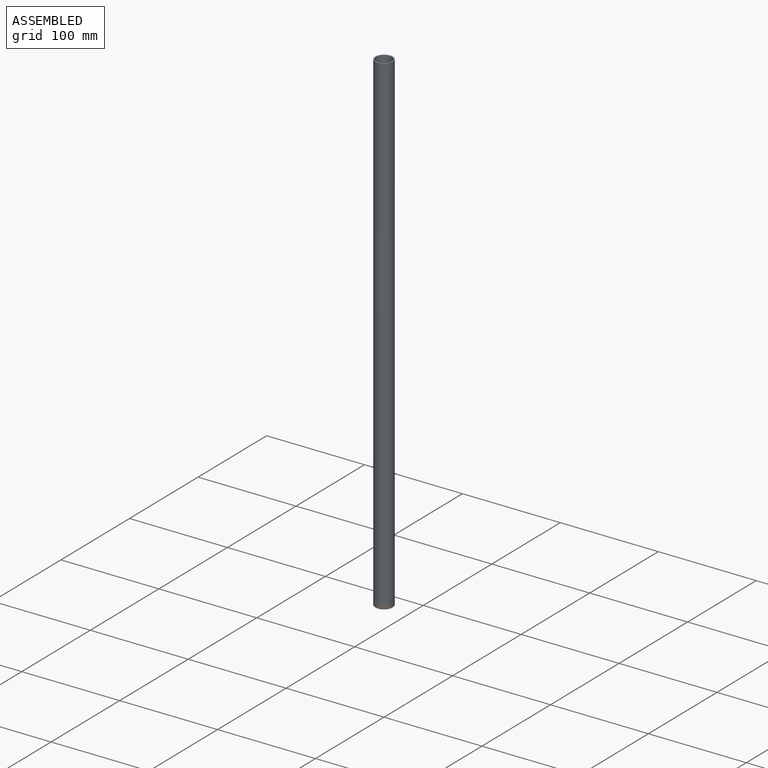
[diagram: assembled view]
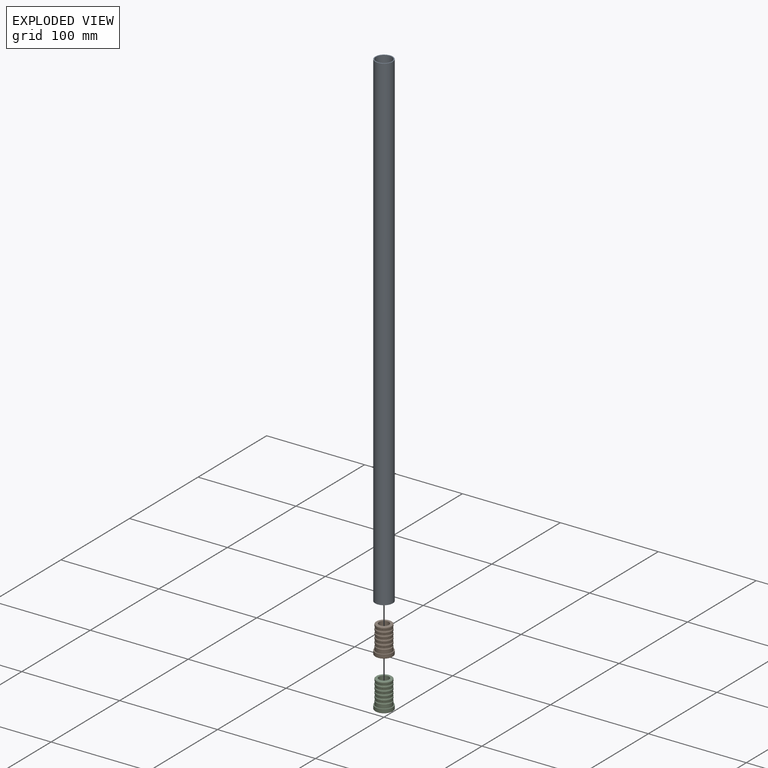
[diagram: exploded view]
GUIDED TOUR — FREECAD ASSEMBLY "PoleAssembly"

This assembly has 3 components, labeled P0..P2 below (a component is one placed body or linked part; the same part can appear more than once), held together by 0 modeled joints plus 3 derived contact edges. A joint is a constraint between two components; its type names the relative motion it leaves free:
  CONTACT — a derived adjacency edge — the two components touch in the source model (clearance under 2% of the assembly's diagonal); it is measured from the geometry, not a modeled constraint.
Axis/direction vectors are unit vectors and 'through' points are millimeter coordinates, both in the assembly's world frame.

MATES
  1. CONTACT "contact_0_1": P0 <-> P1, contact direction (0.000, 0.000, -1.000) through (8.99, 0.45, 4.00) mm (derived from contact, not a modeled constraint)
  2. CONTACT "contact_0_2": P0 <-> P2, contact direction (0.000, 0.000, -1.000) through (8.99, 0.45, 4.00) mm (derived from contact, not a modeled constraint)
  3. CONTACT "contact_1_2": P1 <-> P2, contact direction (0.000, 0.000, -1.000) through (8.99, -0.45, 0.40) mm (derived from contact, not a modeled constraint)

ASSEMBLY ORDER
  1. P0 — the base component [order heuristic]
  2. P1 [order heuristic]
  3. P2 [order heuristic]
Order-tag legend:
  [order heuristic] — this assembly is geometrically interlocked (no collision-free removal order exists), so components are listed in mate-graph order; insertion feasibility is not verified.

Of the 3 components, 3 carry a construction recipe — the FreeCAD feature program (sketches with constraints, then the solid features that consume them) that regenerates the part from scratch, quoted from this document or from the linked companion document it references; the rest are supplied as boundary geometry only. The tour below walks the components in assembly order: each is shown spotlighted twice — in the assembled view, then in the exploded view, where a leader line traces a displaced component back to its assembled socket (components that stay in place when exploded have no leader line; saturated green if recipe-attached, orange if geometry-only; every other component desaturated gray) — followed by its recipe or geometry summary and the mates that hold it.
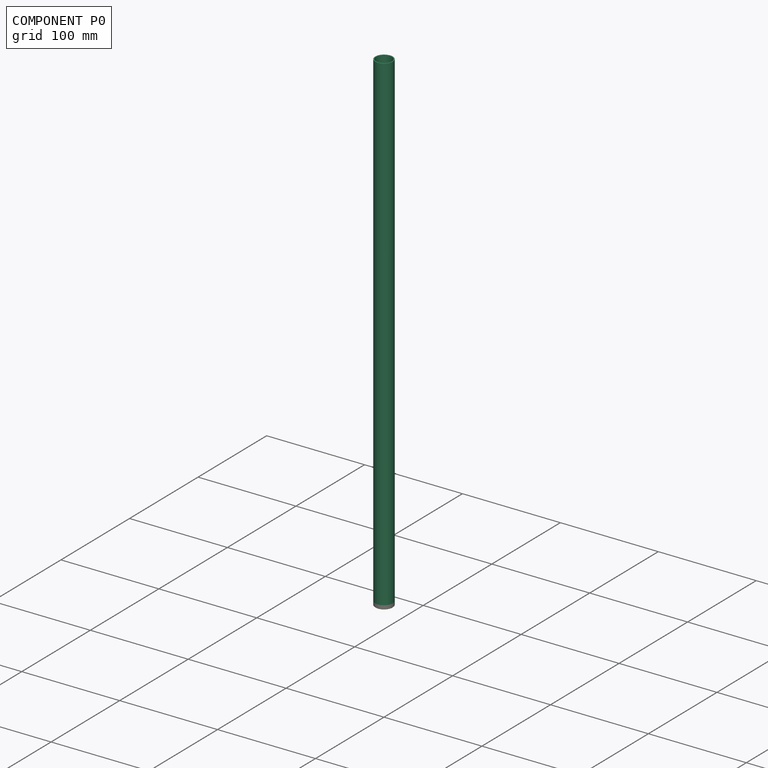
[diagram: component P0 — assembled]
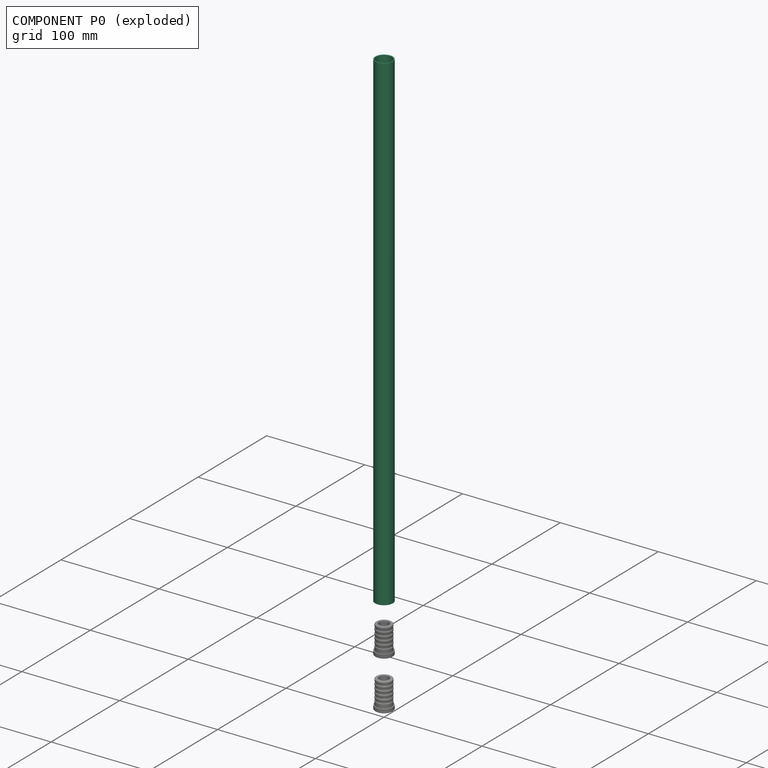
[diagram: component P0 — exploded]
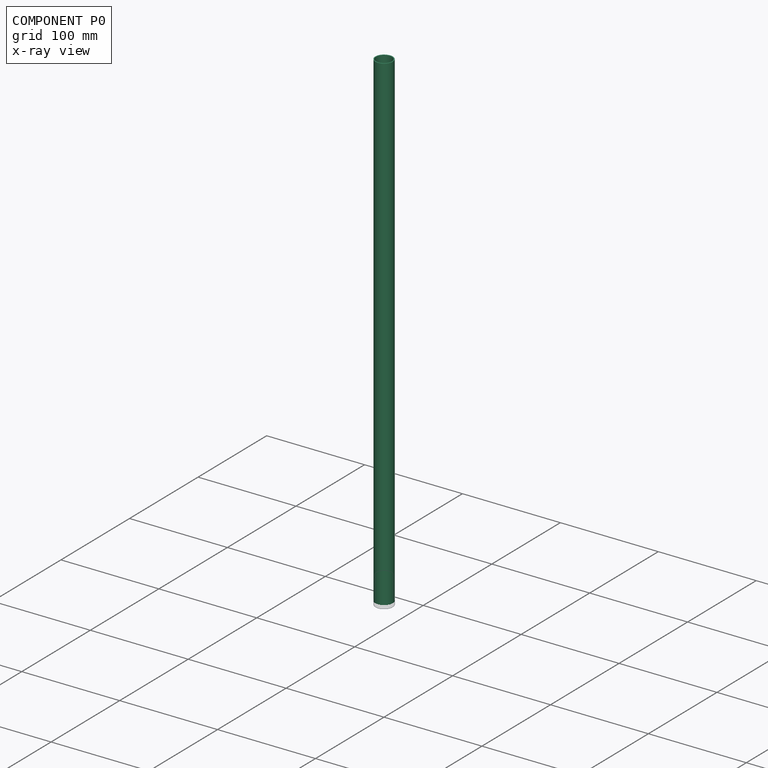
[diagram: component P0 — x-ray view]
COMPONENT P0 — recipe-attached ("Pole_Body", modeled in this document).
Held by: resting contact with P1 (derived edge); resting contact with P2 (derived edge).
Construction recipe (the document's own serialized feature program — sketch geometry with constraints, then the solid features built on it; lengths are millimeters unless a unit is written):

FEATURE [Sketcher::SketchObject] Sketch028  label="Pole_ProfileSketch"
  FullyConstrained = true
  MapMode = 5
  Support = -> [XY_Plane027]
  expr: .Constraints.OD = <<Common>>#<<Parameters>>.pole_od
  expr: Constraints[3] = .Constraints.OD - <<Common>>#<<Parameters>>.pole_wall * 2 mm
  sketch-geometry (2):
    g0: Circle CenterX=0 CenterY=0 CenterZ=0 NormalX=0 NormalY=0 NormalZ=1 AngleXU=0 Radius=9
    g1: Circle CenterX=0 CenterY=0 CenterZ=0 NormalX=0 NormalY=0 NormalZ=1 AngleXU=0 Radius=8
  constraints (4):
    c: Coincident(g0,g-1)
    c: Coincident(g1,g0)
    c: Diameter(g0) = 18  'OD'
    c: Diameter(g1) = 16
FEATURE [PartDesign::Pad] Pad014  label="Pole_Pad"
  Direction = (0,0,1)
  Length = 500
  Length2 = 100
  Profile = -> Sketch028
  Type = 0
  expr: Length = <<Common>>#<<Parameters>>.pole_segment
FEATURE [PartDesign::CoordinateSystem] Local_CS040  label="LCS_PoleBase"
  AttacherType = Attacher::AttachEngine3D
  MapMode = 11
  Placement = pos=(0,0,0) rot=(0,0,1;1.5708rad)
  Support = -> [Pad014]
FEATURE [PartDesign::CoordinateSystem] Local_CS199  label="LCS_PoleUpper"
  AttacherType = Attacher::AttachEngine3D
  MapMode = 11
  Placement = pos=(0,0,500) rot=(0.707107,-0.707107,0;3.14159rad)
  Support = -> [Pad014]
FEATURE [PartDesign::Body] Body015  label="Pole_Body"
  Group = -> [Sketch028,Pad014,Local_CS040,Local_CS199]
  Origin = -> Origin027
  Placement = pos=(0,0,4) rot=(0,0,1;0rad)
  Tip = -> Pad014
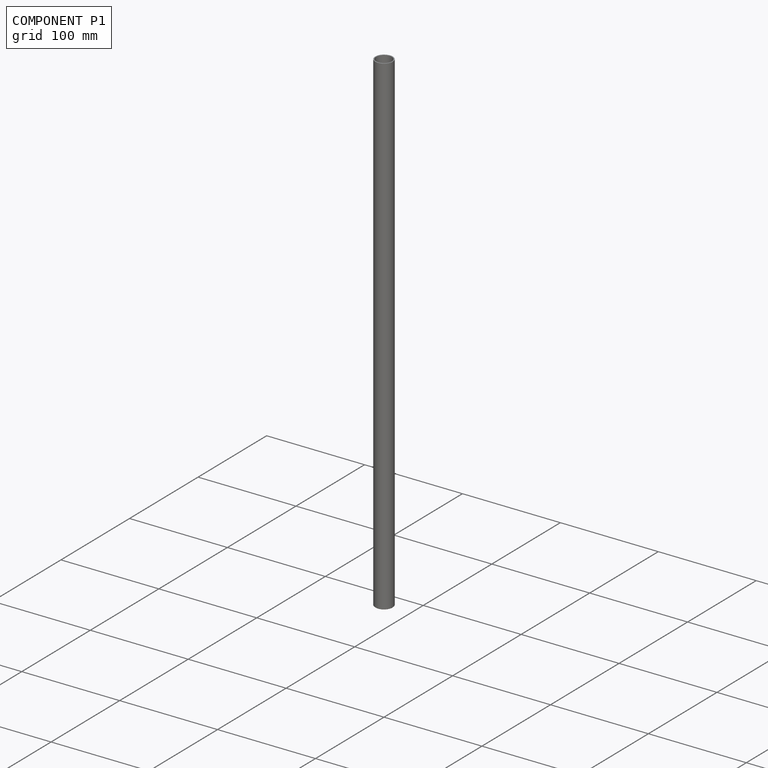
[diagram: component P1 — assembled]
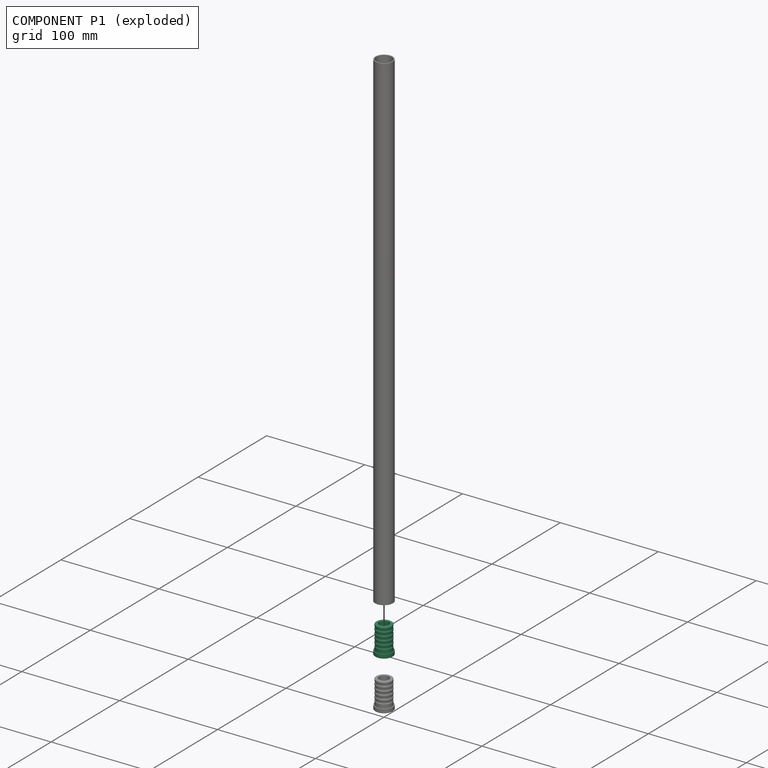
[diagram: component P1 — exploded]
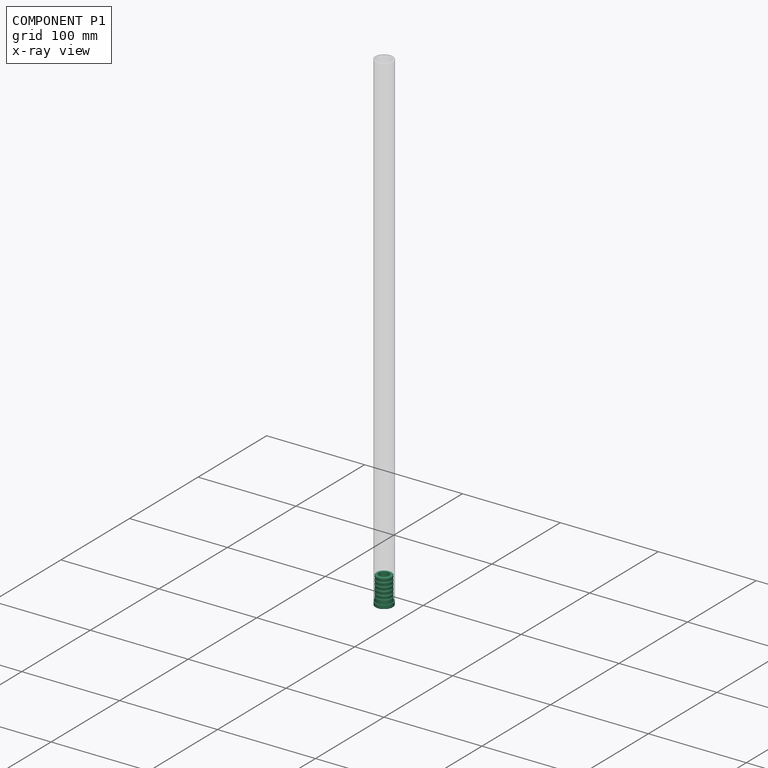
[diagram: component P1 — x-ray view]
COMPONENT P1 — recipe-attached ("PoleBase", modeled in this document).
Held by: resting contact with P0 (derived edge); resting contact with P2 (derived edge).
Construction recipe (the document's own serialized feature program — sketch geometry with constraints, then the solid features built on it; lengths are millimeters unless a unit is written):

FEATURE [Sketcher::SketchObject] Sketch  label="PoleBase_Profile_Sketch"
  FullyConstrained = true
  MapMode = 5
  Placement = pos=(0,0,0) rot=(1,0,0;1.5708rad)
  Support = -> [XZ_Plane068]
  expr: Constraints[7] = <<Common>>#<<Parameters>>.pole_od / 2 - <<Common>>#<<Parameters>>.pole_wall
  expr: Constraints[86] = <<Common>>#<<Parameters>>.pole_od / 2
  expr: Constraints[90] = max(5; Common#<<Parameters>>.pole_od / 2 - <<Common>>#<<Parameters>>.pole_wall - 0.5 - 2.4)
  sketch-geometry (34):
    g0: LineSegment StartX=9 StartY=0.4 StartZ=0 EndX=9 EndY=4 EndZ=0
    g1: LineSegment StartX=9 StartY=4 StartZ=0 EndX=8 EndY=4 EndZ=0
    g2: LineSegment StartX=8 StartY=4 StartZ=0 EndX=8 EndY=8 EndZ=0
    g3: LineSegment StartX=8 StartY=8 StartZ=0 EndX=7.5 EndY=8.5 EndZ=0
    g4: LineSegment StartX=8 StartY=4 StartZ=0 EndX=8 EndY=32 EndZ=0
    g5: LineSegment StartX=7.5 StartY=8.5 StartZ=0 EndX=7.5 EndY=10 EndZ=0
    g6: LineSegment StartX=7.5 StartY=10 StartZ=0 EndX=8 EndY=10.5 EndZ=0
    g7: LineSegment StartX=8 StartY=10.5 StartZ=0 EndX=8 EndY=12 EndZ=0
    g8: LineSegment StartX=8 StartY=12 StartZ=0 EndX=7.5 EndY=12.5 EndZ=0
    g9: LineSegment StartX=7.5 StartY=12.5 StartZ=0 EndX=7.5 EndY=14 EndZ=0
    g10: LineSegment StartX=7.5 StartY=14 StartZ=0 EndX=8 EndY=14.5 EndZ=0
    g11: LineSegment StartX=8 StartY=14.5 StartZ=0 EndX=8 EndY=16 EndZ=0
    g12: LineSegment StartX=8 StartY=16 StartZ=0 EndX=7.5 EndY=16.5 EndZ=0
    g13: LineSegment StartX=7.5 StartY=16.5 StartZ=0 EndX=7.5 EndY=18 EndZ=0
    g14: LineSegment StartX=7.5 StartY=18 StartZ=0 EndX=8 EndY=18.5 EndZ=0
    g15: LineSegment StartX=8 StartY=18.5 StartZ=0 EndX=8 EndY=20 EndZ=0
    g16: LineSegment StartX=8 StartY=20 StartZ=0 EndX=7.5 EndY=20.5 EndZ=0
    g17: LineSegment StartX=7.5 StartY=20.5 StartZ=0 EndX=7.5 EndY=22 EndZ=0
    g18: LineSegment StartX=7.5 StartY=22 StartZ=0 EndX=8 EndY=22.5 EndZ=0
    g19: LineSegment StartX=8 StartY=22.5 StartZ=0 EndX=8 EndY=24 EndZ=0
    g20: LineSegment StartX=8 StartY=24 StartZ=0 EndX=7.5 EndY=24.5 EndZ=0
    g21: LineSegment StartX=7.5 StartY=24.5 StartZ=0 EndX=7.5 EndY=26 EndZ=0
    g22: LineSegment StartX=7.5 StartY=26 StartZ=0 EndX=8 EndY=26.5 EndZ=0
    g23: LineSegment StartX=8 StartY=26.5 StartZ=0 EndX=8 EndY=28 EndZ=0
    g24: LineSegment StartX=8 StartY=28 StartZ=0 EndX=7.5 EndY=28.5 EndZ=0
    g25: LineSegment StartX=7.5 StartY=4 StartZ=0 EndX=7.5 EndY=32 EndZ=0
    g26: LineSegment StartX=7.5 StartY=28.5 StartZ=0 EndX=5.1 EndY=28.5 EndZ=0
    g27: LineSegment StartX=5.1 StartY=28.5 StartZ=0 EndX=5.1 EndY=8 EndZ=0
    g28: LineSegment StartX=5.1 StartY=8 StartZ=0 EndX=2.5 EndY=8 EndZ=0
    g29: LineSegment StartX=2.5 StartY=8 StartZ=0 EndX=2.5 EndY=0.4 EndZ=0
    g30: LineSegment StartX=2.5 StartY=0.4 StartZ=0 EndX=2.9 EndY=0 EndZ=0
    g31: LineSegment StartX=2.9 StartY=0 StartZ=0 EndX=8.6 EndY=0 EndZ=0
    g32: LineSegment StartX=8.6 StartY=0 StartZ=0 EndX=9 EndY=0.4 EndZ=0
    g33: LineSegment StartX=2.5 StartY=0.4 StartZ=0 EndX=9 EndY=0.4 EndZ=0
  constraints (102):
    c: Coincident(g0,g32)
    c: Vertical(g0)
    c: Coincident(g1,g0)
    c: Horizontal(g1)
    c: Coincident(g3,g2)
    c: Vertical(g2)
    c: Vertical(g4)
    c: DistanceX(g4) = 8
    c: DistanceY(g4) = 32
    c: Coincident(g5,g3)
    c: Vertical(g5)
    c: Coincident(g6,g5)
    c: PointOnObject(g6,g4)
    c: Coincident(g7,g6)
    c: Vertical(g7)
    c: Coincident(g8,g7)
    c: Coincident(g9,g8)
    c: Vertical(g9)
    c: Coincident(g10,g9)
    c: PointOnObject(g10,g4)
    c: Coincident(g11,g10)
    c: Vertical(g11)
    c: Coincident(g12,g11)
    c: Coincident(g13,g12)
    c: Vertical(g13)
    c: Coincident(g14,g13)
    c: Coincident(g15,g14)
    c: Vertical(g15)
    c: Coincident(g16,g15)
    c: Coincident(g17,g16)
    c: Vertical(g17)
    c: Coincident(g18,g17)
    c: Coincident(g19,g18)
    c: Vertical(g19)
    c: Coincident(g20,g19)
    c: Coincident(g21,g20)
    c: Vertical(g21)
    c: Coincident(g22,g21)
    c: Coincident(g23,g22)
    c: Vertical(g23)
    c: Coincident(g24,g23)
    c: Vertical(g25)
    c: PointOnObject(g25,g1)
    c: Coincident(g1,g4)
    c: DistanceX(g25,g1) = 0.5
    c: Equal(g25,g4)
    c: Coincident(g2,g1)
    c: DistanceY(g2,g2) = 4
    c: Angle(g4,g3) = 0.785398
    c: DistanceY(g5,g5) = 1.5
    c: Perpendicular(g3,g6)
    c: Equal(g5,g7)
    c: Equal(g7,g9)
    c: Equal(g9,g11)
    c: Equal(g11,g13)
    c: Equal(g13,g15)
    c: Equal(g15,g17)
    c: Equal(g17,g19)
    c: Equal(g19,g21)
    c: Equal(g21,g23)
    c: Parallel(g3,g8)
    c: Parallel(g8,g12)
    c: Parallel(g12,g16)
    c: Parallel(g16,g20)
    c: Parallel(g20,g24)
    c: Parallel(g22,g18)
    c: Parallel(g18,g14)
    c: Parallel(g14,g10)
    c: Parallel(g10,g6)
    c: PointOnObject(g3,g25)
    c: PointOnObject(g8,g25)
    c: PointOnObject(g12,g25)
    c: PointOnObject(g16,g25)
    c: PointOnObject(g20,g25)
    c: PointOnObject(g24,g25)
    c: PointOnObject(g22,g4)
    c: PointOnObject(g18,g4)
    c: PointOnObject(g14,g4)
    c: Coincident(g26,g24)
    c: Horizontal(g26)
    c: Coincident(g27,g26)
    c: Vertical(g27)
    c: Coincident(g28,g27)
    c: Horizontal(g28)
    c: Coincident(g29,g28)
    c: Vertical(g29)
    c: DistanceX(g32) = 9
    c: Coincident(g29,g30)
    c: DistanceX(g30) = 2.5
    c: DistanceY(g0,g27) = 4
    c: DistanceX(g27) = 5.1
    c: Coincident(g30,g31)
    c: Coincident(g31,g32)
    c: Horizontal(g31)
    c: PointOnObject(g30,g-1)
    c: DistanceY(g31,g0) = 4
    c: Equal(g32,g30)
    c: Coincident(g33,g29)
    c: Coincident(g33,g0)
    c: Horizontal(g33)
    c: DistanceY(g30,g29) = 0.4
    c: Angle(g31,g30) = 2.35619
FEATURE [PartDesign::Revolution] Revolution  label="PoleBase_Revolution"
  Angle = 360
  Axis = (0,-2e-16,1)
  Base = (0,0,0)
  Placement = pos=(0,0,0) rot=(1,0,0;1.5708rad)
  Profile = -> Sketch
  ReferenceAxis = -> Sketch [V_Axis]
  Reversed = true
FEATURE [PartDesign::CoordinateSystem] Local_CS203  label="LCS_PoleBase_Bottom"
  AttacherType = Attacher::AttachEngine3D
  MapMode = 11
  Placement = pos=(4e-16,0,0) rot=(0.707107,-0.707107,0;3.14159rad)
  Support = -> [Revolution]
FEATURE [PartDesign::CoordinateSystem] Local_CS204  label="LCS_PoleBase_RimTop"
  AttacherType = Attacher::AttachEngine3D
  MapMode = 11
  Placement = pos=(0,9e-16,4) rot=(0.707107,-0.707107,0;3.14159rad)
  Support = -> [Revolution]
FEATURE [Sketcher::SketchObject] Sketch029  label="PoleBase_Nut_Sketch"
  AttachmentOffset = pos=(0,0,8) rot=(0,0,1;0rad)
  FullyConstrained = true
  MapMode = 5
  Placement = pos=(0,0,8) rot=(0,0,1;0rad)
  Support = -> [XY_Plane068]
  sketch-geometry (7):
    g0: LineSegment StartX=2.3094 StartY=-4 StartZ=0 EndX=4.6188 EndY=0 EndZ=0
    g1: LineSegment StartX=4.6188 StartY=0 StartZ=0 EndX=2.3094 EndY=4 EndZ=0
    g2: LineSegment StartX=2.3094 StartY=4 StartZ=0 EndX=-2.3094 EndY=4 EndZ=0
    g3: LineSegment StartX=-2.3094 StartY=4 StartZ=0 EndX=-4.6188 EndY=0 EndZ=0
    g4: LineSegment StartX=-4.6188 StartY=0 StartZ=0 EndX=-2.3094 EndY=-4 EndZ=0
    g5: LineSegment StartX=-2.3094 StartY=-4 StartZ=0 EndX=2.3094 EndY=-4 EndZ=0
    g6: Circle CenterX=0 CenterY=0 CenterZ=0 NormalX=0 NormalY=0 NormalZ=1 AngleXU=0 Radius=4.6188
  constraints (16):
    c: Coincident(g0,g1)
    c: Coincident(g1,g2)
    c: Coincident(g2,g3)
    c: Coincident(g3,g4)
    c: Coincident(g4,g5)
    c: Coincident(g5,g0)
    c: Equal(g0, g1-g5) x5
    c: PointOnObject(g0,g6)
    c: PointOnObject(g1,g6)
    c: PointOnObject(g2,g6)
    c: PointOnObject(g3,g6)
    c: PointOnObject(g4,g6)
    c: PointOnObject(g5,g6)
    c: Coincident(g6,g-1)
    c: PointOnObject(g3,g-1)
    c: DistanceY(g4,g2) = 8
FEATURE [PartDesign::Pocket] Pocket  label="PoleBase_Nut_Cut"
  BaseFeature = -> Revolution
  Direction = (0,0,-1)
  Length = 5
  Length2 = 5
  Placement = pos=(0,0,0) rot=(1,0,0;1.5708rad)
  Profile = -> Sketch029
  ReferenceAxis = -> Sketch029 [N_Axis]
  Type = 0
FEATURE [PartDesign::CoordinateSystem] Local_CS202  label="LCS_PoleBase_Hex"
  AttacherType = Attacher::AttachEngine3D
  AttachmentOffset = pos=(0,0,0) rot=(0,0,1;1.5708rad)
  MapMode = 11
  Placement = pos=(0,7e-16,3) rot=(0,-1,0;3.14159rad)
  Support = -> [Pocket]
FEATURE [PartDesign::Body] Body022015  label="PoleBase"
  Group = -> [Local_CS202,Local_CS203,Local_CS204,Sketch,Revolution,Sketch029,Pocket]
  Origin = -> Origin068
  Tip = -> Pocket
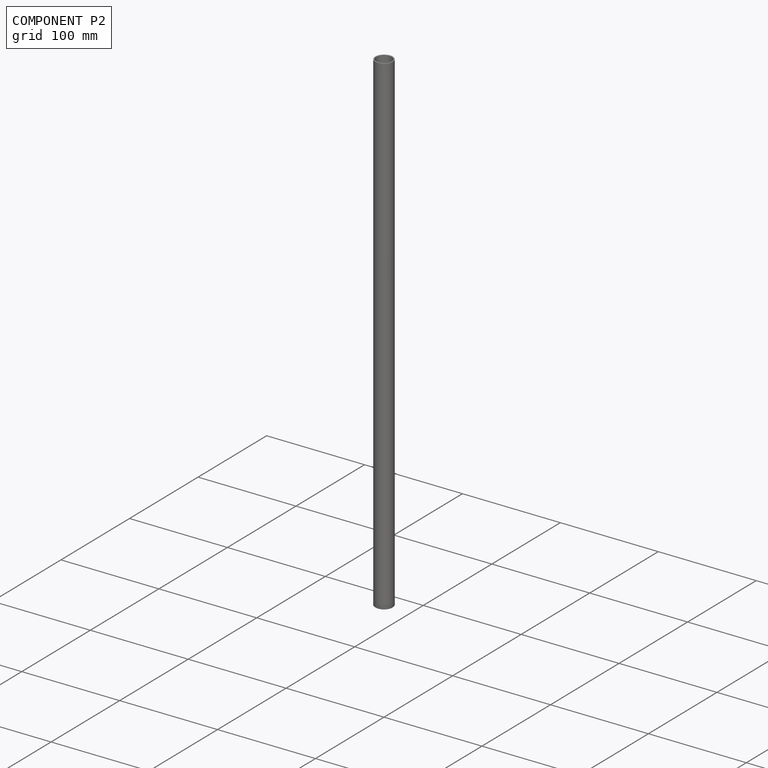
[diagram: component P2 — assembled]
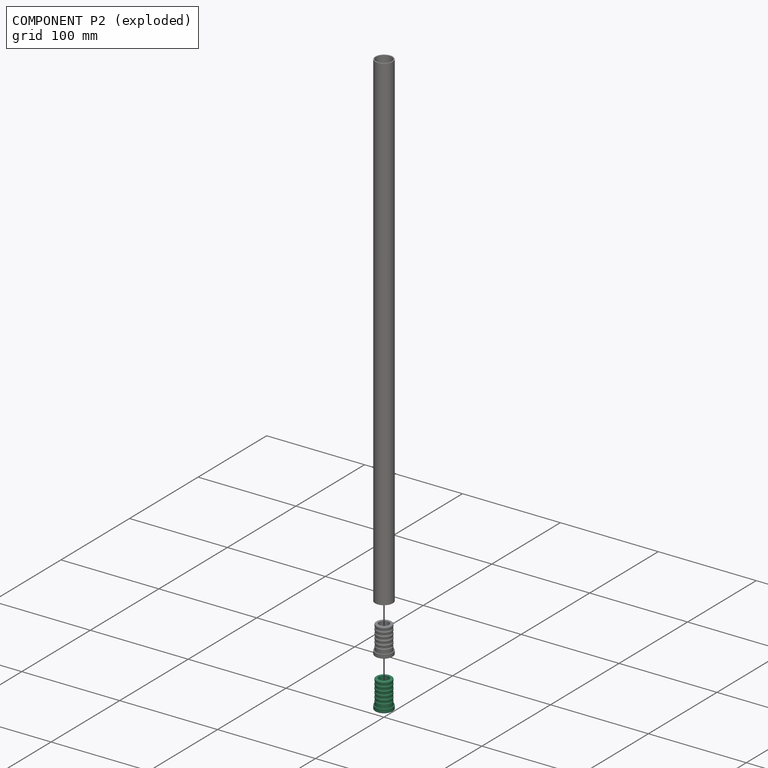
[diagram: component P2 — exploded]
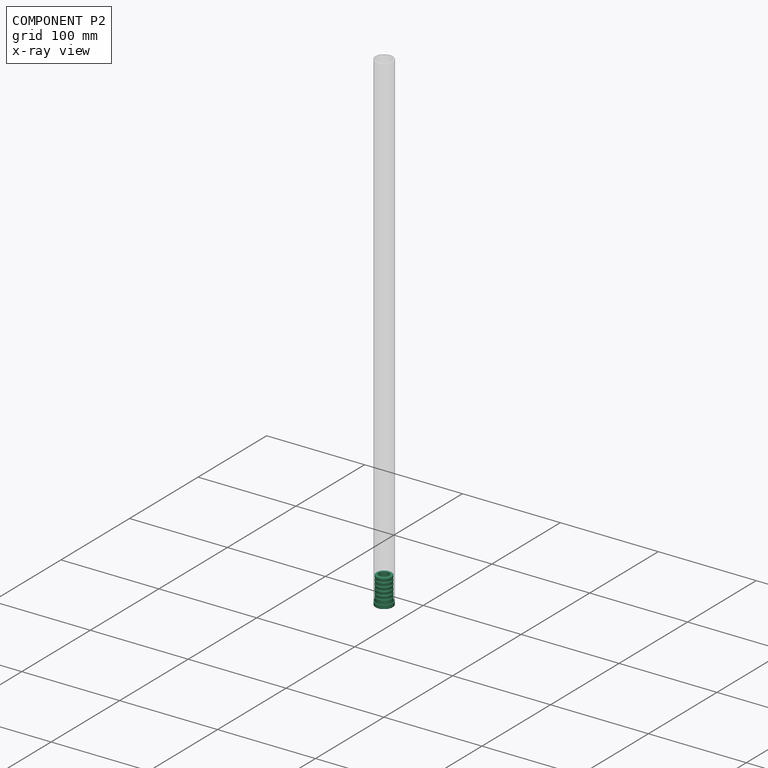
[diagram: component P2 — x-ray view]
COMPONENT P2 — recipe-attached ("PoleBaseThreaded", modeled in this document).
Held by: resting contact with P0 (derived edge); resting contact with P1 (derived edge).
Construction recipe (the document's own serialized feature program — sketch geometry with constraints, then the solid features built on it; lengths are millimeters unless a unit is written):

FEATURE [PartDesign::CoordinateSystem] Local_CS205  label="LCS_PoleBase_Hex001"
  AttacherType = Attacher::AttachEngine3D
  AttachmentOffset = pos=(0,0,0) rot=(0,0,1;1.5708rad)
  MapMode = 11
  Placement = pos=(0,-1e-15,3) rot=(0,1,0;3.14159rad)
FEATURE [Sketcher::SketchObject] Sketch030  label="PoleBase_Profile_Sketch001"
  FullyConstrained = true
  MapMode = 5
  Placement = pos=(0,0,0) rot=(1,0,0;1.5708rad)
  Support = -> [XZ_Plane069]
  expr: Constraints[7] = <<Common>>#<<Parameters>>.pole_od / 2 - <<Common>>#<<Parameters>>.pole_wall
  expr: Constraints[84] = <<Common>>#<<Parameters>>.pole_od / 2
  expr: Constraints[87] = max(5; Common#<<Parameters>>.pole_od / 2 - <<Common>>#<<Parameters>>.pole_wall - 0.5 - 2.4)
  sketch-geometry (38):
    g0: LineSegment StartX=9 StartY=0.4 StartZ=0 EndX=9 EndY=4 EndZ=0
    g1: LineSegment StartX=9 StartY=4 StartZ=0 EndX=8 EndY=4 EndZ=0
    g2: LineSegment StartX=8 StartY=4 StartZ=0 EndX=8 EndY=8 EndZ=0
    g3: LineSegment StartX=8 StartY=8 StartZ=0 EndX=7.5 EndY=8.5 EndZ=0
    g4: LineSegment StartX=8 StartY=4 StartZ=0 EndX=8 EndY=32 EndZ=0
    g5: LineSegment StartX=7.5 StartY=8.5 StartZ=0 EndX=7.5 EndY=10 EndZ=0
    g6: LineSegment StartX=7.5 StartY=10 StartZ=0 EndX=8 EndY=10.5 EndZ=0
    g7: LineSegment StartX=8 StartY=10.5 StartZ=0 EndX=8 EndY=12 EndZ=0
    g8: LineSegment StartX=8 StartY=12 StartZ=0 EndX=7.5 EndY=12.5 EndZ=0
    g9: LineSegment StartX=7.5 StartY=12.5 StartZ=0 EndX=7.5 EndY=14 EndZ=0
    g10: LineSegment StartX=7.5 StartY=14 StartZ=0 EndX=8 EndY=14.5 EndZ=0
    g11: LineSegment StartX=8 StartY=14.5 StartZ=0 EndX=8 EndY=16 EndZ=0
    g12: LineSegment StartX=8 StartY=16 StartZ=0 EndX=7.5 EndY=16.5 EndZ=0
    g13: LineSegment StartX=7.5 StartY=16.5 StartZ=0 EndX=7.5 EndY=18 EndZ=0
    g14: LineSegment StartX=7.5 StartY=18 StartZ=0 EndX=8 EndY=18.5 EndZ=0
    g15: LineSegment StartX=8 StartY=18.5 StartZ=0 EndX=8 EndY=20 EndZ=0
    g16: LineSegment StartX=8 StartY=20 StartZ=0 EndX=7.5 EndY=20.5 EndZ=0
    g17: LineSegment StartX=7.5 StartY=20.5 StartZ=0 EndX=7.5 EndY=22 EndZ=0
    g18: LineSegment StartX=7.5 StartY=22 StartZ=0 EndX=8 EndY=22.5 EndZ=0
    g19: LineSegment StartX=8 StartY=22.5 StartZ=0 EndX=8 EndY=24 EndZ=0
    g20: LineSegment StartX=8 StartY=24 StartZ=0 EndX=7.5 EndY=24.5 EndZ=0
    g21: LineSegment StartX=7.5 StartY=24.5 StartZ=0 EndX=7.5 EndY=26 EndZ=0
    g22: LineSegment StartX=7.5 StartY=26 StartZ=0 EndX=8 EndY=26.5 EndZ=0
    g23: LineSegment StartX=8 StartY=26.5 StartZ=0 EndX=8 EndY=28 EndZ=0
    g24: LineSegment StartX=8 StartY=28 StartZ=0 EndX=7.5 EndY=28.5 EndZ=0
    g25: LineSegment StartX=7.5 StartY=4 StartZ=0 EndX=7.5 EndY=32 EndZ=0
    g26: LineSegment StartX=7.5 StartY=28.5 StartZ=0 EndX=5.1 EndY=28.5 EndZ=0
    g27: LineSegment StartX=5.1 StartY=28.5 StartZ=0 EndX=5.1 EndY=9 EndZ=0
    g28: LineSegment StartX=5.1 StartY=9 StartZ=0 EndX=4.35 EndY=9 EndZ=0
    g29: LineSegment StartX=1.5 StartY=1.4 StartZ=0 EndX=2.9 EndY=0 EndZ=0
    g30: LineSegment StartX=2.9 StartY=0 StartZ=0 EndX=8.6 EndY=0 EndZ=0
    g31: LineSegment StartX=8.6 StartY=0 StartZ=0 EndX=9 EndY=0.4 EndZ=0
    g32: LineSegment StartX=1.5 StartY=3 StartZ=0 EndX=1.5 EndY=1.4 EndZ=0
    g33: LineSegment StartX=4.35 StartY=3 StartZ=0 EndX=1.5 EndY=3 EndZ=0
    g34: LineSegment StartX=4.35 StartY=8 StartZ=0 EndX=4.35 EndY=3 EndZ=0
    g35: ArcOfCircle CenterX=4.35 CenterY=8.5 CenterZ=0 NormalX=0 NormalY=0 NormalZ=1 AngleXU=0 Radius=0.5 StartAngle=1.5708 EndAngle=4.71239
    g36: LineSegment StartX=4.35 StartY=9 StartZ=0 EndX=4.35 EndY=8 EndZ=0
    g37: LineSegment StartX=3.85 StartY=8.5 StartZ=0 EndX=4.35 EndY=8.5 EndZ=0
  constraints (115):
    c: Coincident(g0,g31)
    c: Vertical(g0)
    c: Coincident(g1,g0)
    c: Horizontal(g1)
    c: Coincident(g3,g2)
    c: Vertical(g2)
    c: Vertical(g4)
    c: DistanceX(g4) = 8
    c: DistanceY(g4) = 32
    c: Coincident(g5,g3)
    c: Vertical(g5)
    c: Coincident(g6,g5)
    c: PointOnObject(g6,g4)
    c: Coincident(g7,g6)
    c: Vertical(g7)
    c: Coincident(g8,g7)
    c: Coincident(g9,g8)
    c: Vertical(g9)
    c: Coincident(g10,g9)
    c: PointOnObject(g10,g4)
    c: Coincident(g11,g10)
    c: Vertical(g11)
    c: Coincident(g12,g11)
    c: Coincident(g13,g12)
    c: Vertical(g13)
    c: Coincident(g14,g13)
    c: Coincident(g15,g14)
    c: Vertical(g15)
    c: Coincident(g16,g15)
    c: Coincident(g17,g16)
    c: Vertical(g17)
    c: Coincident(g18,g17)
    c: Coincident(g19,g18)
    c: Vertical(g19)
    c: Coincident(g20,g19)
    c: Coincident(g21,g20)
    c: Vertical(g21)
    c: Coincident(g22,g21)
    c: Coincident(g23,g22)
    c: Vertical(g23)
    c: Coincident(g24,g23)
    c: Vertical(g25)
    c: PointOnObject(g25,g1)
    c: Coincident(g1,g4)
    c: DistanceX(g25,g1) = 0.5
    c: Equal(g25,g4)
    c: Coincident(g2,g1)
    c: DistanceY(g2,g2) = 4
    c: Angle(g4,g3) = 0.785398
    c: DistanceY(g5,g5) = 1.5
    c: Perpendicular(g3,g6)
    c: Equal(g5,g7)
    c: Equal(g7,g9)
    c: Equal(g9,g11)
    c: Equal(g11,g13)
    c: Equal(g13,g15)
    c: Equal(g15,g17)
    c: Equal(g17,g19)
    c: Equal(g19,g21)
    c: Equal(g21,g23)
    c: Parallel(g3,g8)
    c: Parallel(g8,g12)
    c: Parallel(g12,g16)
    c: Parallel(g16,g20)
    c: Parallel(g20,g24)
    c: Parallel(g22,g18)
    c: Parallel(g18,g14)
    c: Parallel(g14,g10)
    c: Parallel(g10,g6)
    c: PointOnObject(g3,g25)
    c: PointOnObject(g8,g25)
    c: PointOnObject(g12,g25)
    c: PointOnObject(g16,g25)
    c: PointOnObject(g20,g25)
    c: PointOnObject(g24,g25)
    c: PointOnObject(g22,g4)
    c: PointOnObject(g18,g4)
    c: PointOnObject(g14,g4)
    c: Coincident(g26,g24)
    c: Horizontal(g26)
    c: Coincident(g27,g26)
    c: Vertical(g27)
    c: Coincident(g28,g27)
    c: Horizontal(g28)
    c: DistanceX(g31) = 9
    c: Coincident(g32,g29)
    c: DistanceX(g29) = 1.5
    c: DistanceX(g27) = 5.1
    c: Coincident(g29,g30)
    c: Coincident(g30,g31)
    c: Horizontal(g30)
    c: PointOnObject(g29,g-1)
    c: DistanceY(g30,g0) = 4
    c: Angle(g30,g29) = 2.35619
    c: DistanceX(g29) = 2.9
    c: DistanceY(g30,g0) = 0.4
    c: Angle(g31,g30) = 2.35619
    c: Coincident(g33,g32)
    c: Vertical(g32)
    c: Coincident(g34,g33)
    c: Vertical(g34)
    c: DistanceX(g33) = 4.35
    c: Horizontal(g33)
    c: DistanceY(g32) = 3
    c: DistanceY(g34,g34) = 5
    c: Coincident(g35,g34)
    c: Coincident(g35,g28)
    c: Coincident(g36,g28)
    c: Coincident(g36,g34)
    c: Vertical(g36)
    c: PointOnObject(g37,g35)
    c: Coincident(g37,g35)
    c: Horizontal(g37)
    c: DistanceX(g37,g34) = 0.5
    c: DistanceY(g36,g36) = 1
FEATURE [PartDesign::Revolution] Revolution001  label="PoleBase_Revolution001"
  Angle = 360
  Axis = (0,-2e-16,1)
  Base = (0,0,0)
  Placement = pos=(0,0,0) rot=(1,0,0;1.5708rad)
  Profile = -> Sketch030
  ReferenceAxis = -> Sketch030 [V_Axis]
  Reversed = true
FEATURE [PartDesign::CoordinateSystem] Local_CS206  label="LCS_PoleBase_Bottom001"
  AttacherType = Attacher::AttachEngine3D
  MapMode = 11
  Placement = pos=(0,0,3) rot=(0.707107,-0.707107,0;3.14159rad)
  Support = -> [Revolution001]
FEATURE [PartDesign::CoordinateSystem] Local_CS207  label="LCS_PoleBase_RimTop001"
  AttacherType = Attacher::AttachEngine3D
  MapMode = 11
  Placement = pos=(0,0,4) rot=(0.707107,-0.707107,0;3.14159rad)
  Support = -> [Revolution001]
FEATURE [Sketcher::SketchObject] Sketch031  label="PoleBase_Nut_Sketch001"
  AttachmentOffset = pos=(0,0,8) rot=(0,0,1;0rad)
  ExternalGeometry = -> [Revolution001]
  FullyConstrained = true
  MapMode = 5
  Placement = pos=(0,0,8) rot=(0,0,1;0rad)
  Support = -> [XY_Plane069]
  sketch-geometry (10):
    g0: LineSegment StartX=-3.76721 StartY=2.175 StartZ=0 EndX=3.76721 EndY=-2.175 EndZ=0
    g1: LineSegment StartX=-3.76721 StartY=-2.175 StartZ=0 EndX=3.76721 EndY=2.175 EndZ=0
    g2: LineSegment StartX=-3.76721 StartY=2.175 StartZ=0 EndX=0 EndY=-4.35 EndZ=0
    g3: LineSegment StartX=-3.76721 StartY=2.175 StartZ=0 EndX=3.76721 EndY=2.175 EndZ=0
    g4: ArcOfCircle CenterX=0 CenterY=-7e-16 CenterZ=0 NormalX=0 NormalY=0 NormalZ=1 AngleXU=0 Radius=4.35 StartAngle=1.5708 EndAngle=2.61799
    g5: ArcOfCircle CenterX=0 CenterY=-7e-16 CenterZ=0 NormalX=0 NormalY=0 NormalZ=1 AngleXU=0 Radius=4.35 StartAngle=3.66519 EndAngle=4.71239
    g6: ArcOfCircle CenterX=0 CenterY=-7e-16 CenterZ=0 NormalX=0 NormalY=0 NormalZ=1 AngleXU=0 Radius=4.35 StartAngle=5.75959 EndAngle=6.80678
    g7: LineSegment StartX=3e-16 StartY=4.35 StartZ=0 EndX=3.76721 EndY=2.175 EndZ=0
    g8: LineSegment StartX=3.76721 StartY=-2.175 StartZ=0 EndX=-4e-16 EndY=-4.35 EndZ=0
    g9: LineSegment StartX=-3.76721 StartY=-2.175 StartZ=0 EndX=-3.76721 EndY=2.175 EndZ=0
  constraints (28):
    c: PointOnObject(g0,g-3)
    c: PointOnObject(g0,g-3)
    c: PointOnObject(g1,g-3)
    c: PointOnObject(g1,g-3)
    c: Coincident(g2,g0)
    c: PointOnObject(g2,g-2)
    c: Coincident(g3,g0)
    c: Coincident(g3,g1)
    c: Horizontal(g3)
    c: Equal(g2,g3)
    c: PointOnObject(g2,g-3)
    c: PointOnObject(g-3,g1)
    c: PointOnObject(g-3,g0)
    c: Coincident(g4,g-3)
    c: Coincident(g4,g0)
    c: PointOnObject(g4,g-2)
    c: Coincident(g5,g4)
    c: Coincident(g5,g1)
    c: PointOnObject(g5,g-2)
    c: Coincident(g6,g4)
    c: Coincident(g6,g0)
    c: PointOnObject(g6,g1)
    c: Coincident(g7,g4)
    c: Coincident(g7,g6)
    c: Coincident(g8,g6)
    c: Coincident(g8,g5)
    c: Coincident(g9,g5)
    c: Coincident(g9,g4)
FEATURE [PartDesign::Pocket] Pocket001
  BaseFeature = -> Revolution001
  Direction = (0,0,-1)
  Length = 5
  Length2 = 5
  Placement = pos=(0,0,0) rot=(1,0,0;1.5708rad)
  Profile = -> Sketch031
  ReferenceAxis = -> Sketch031 [N_Axis]
  Reversed = true
  Type = 0
FEATURE [Sketcher::SketchObject] Sketch032
  FullyConstrained = true
  MapMode = 5
  Support = -> [XY_Plane069]
  sketch-geometry (1):
    g0: Circle CenterX=0 CenterY=0 CenterZ=0 NormalX=0 NormalY=0 NormalZ=1 AngleXU=0 Radius=2.5
  constraints (2):
    c: Coincident(g0,g-1)
    c: Diameter(g0) = 5
FEATURE [PartDesign::Hole] Hole
  BaseFeature = -> Pocket001
  CustomThreadClearance = 0.3
  Depth = 77.1154
  DepthType = 1
  Diameter = 4.5
  DrillForDepth = false
  DrillPoint = 1
  DrillPointAngle = 118
  HoleCutCountersinkAngle = 90
  HoleCutCustomValues = false
  HoleCutDepth = 0
  HoleCutDiameter = 6.1
  HoleCutType = 0
  ModelThread = true
  Placement = pos=(0,0,0) rot=(1,0,0;1.5708rad)
  Profile = -> Sketch032
  Reversed = true
  Tapered = false
  TaperedAngle = 90
  ThreadClass = 0
  ThreadDepth = 77.1154
  ThreadDepthType = 0
  ThreadDirection = 0
  ThreadFit = 0
  ThreadSize = 13
  ThreadType = 1
  Threaded = true
  UseCustomThreadClearance = true
  expr: CustomThreadClearance = <<Common>>#<<Parameters>>.acc_FDMtol
FEATURE [PartDesign::Body] Body022016  label="PoleBaseThreaded"
  Group = -> [Local_CS205,Local_CS206,Local_CS207,Sketch030,Revolution001,Sketch031,Pocket001,Sketch032,Hole]
  Origin = -> Origin069
  Tip = -> Hole
PROVENANCE & LICENSES
Assembly and component geometry: a FreeCAD (.FCStd) document from a public repository crawl; components, placements and joints were extracted with FreeCAD and each solid tessellated.
Construction recipes: the document's own serialized feature recipes (and, for linked parts, the recipes of companion documents from the same project).
License: as declared in the source repository (recorded in the dataset sidecar).
Joints: native FreeCAD joints and A2plus constraints are mapped to standard mate types; edges marked 'derived from contact' connect touching components and are measured from the geometry, not modeled.
Verification: 3 of this assembly's 3 components carry a construction recipe (3 from this document itself); the rest are geometry-only. Every component's tessellation passed the extraction mesh gates (mesh-volume checksum against the B-rep where available, bounding-box inflation <= 2%).
Renders: orthographic iso camera (az 35 / el 25); the floor grid conveys scale (grid pitch printed in each image; no ruler). In the exploded view each component is displaced by its stored offset vector: the offsets alone carry the explosion direction (mate normal/axis signs are not orientation cues and do not encode it), and separation distances are assigned per mate-chain, not proportionally to assembly-order depth.
